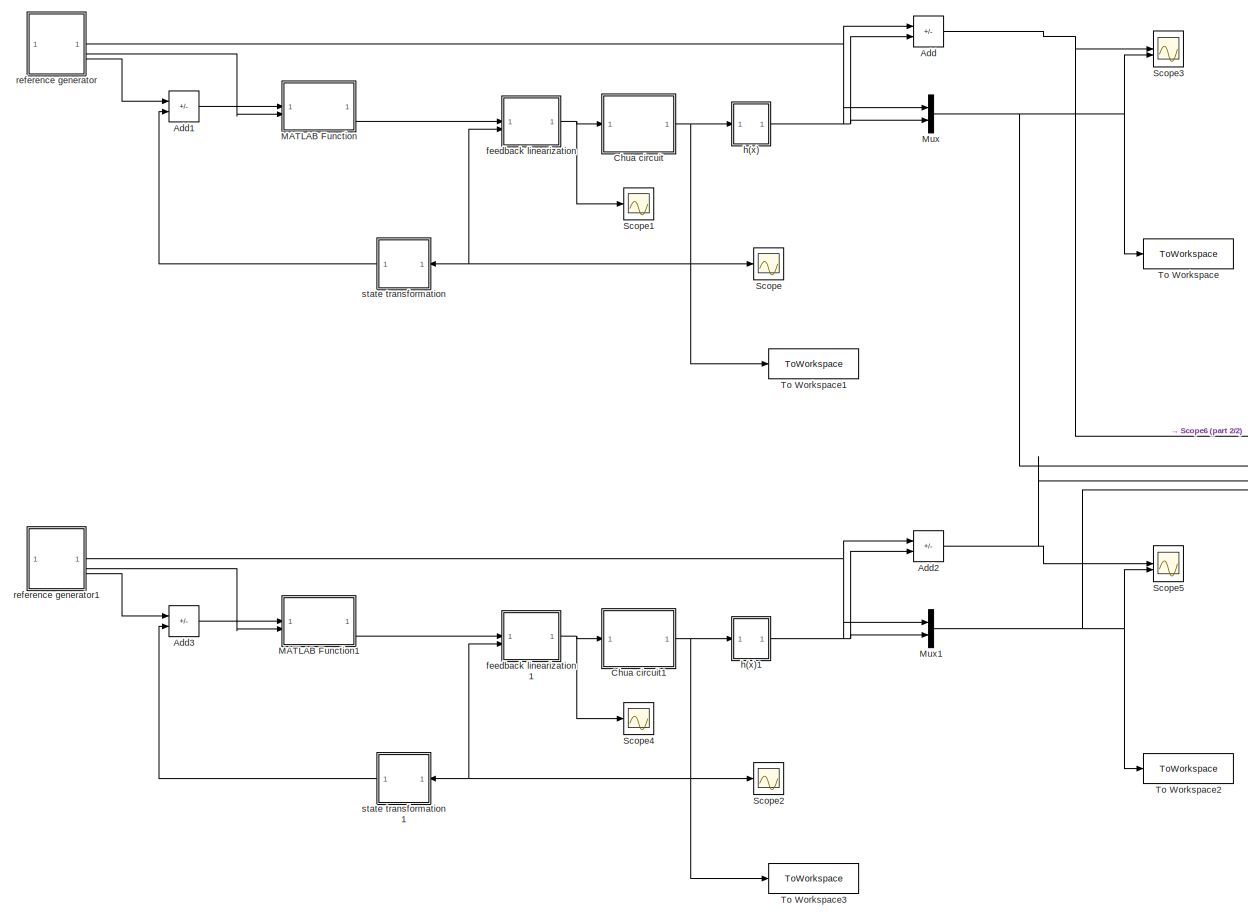
[diagram: root canvas - part 1/2, most of the canvas]
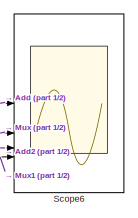
[diagram: root canvas - part 2/2, middle right region]
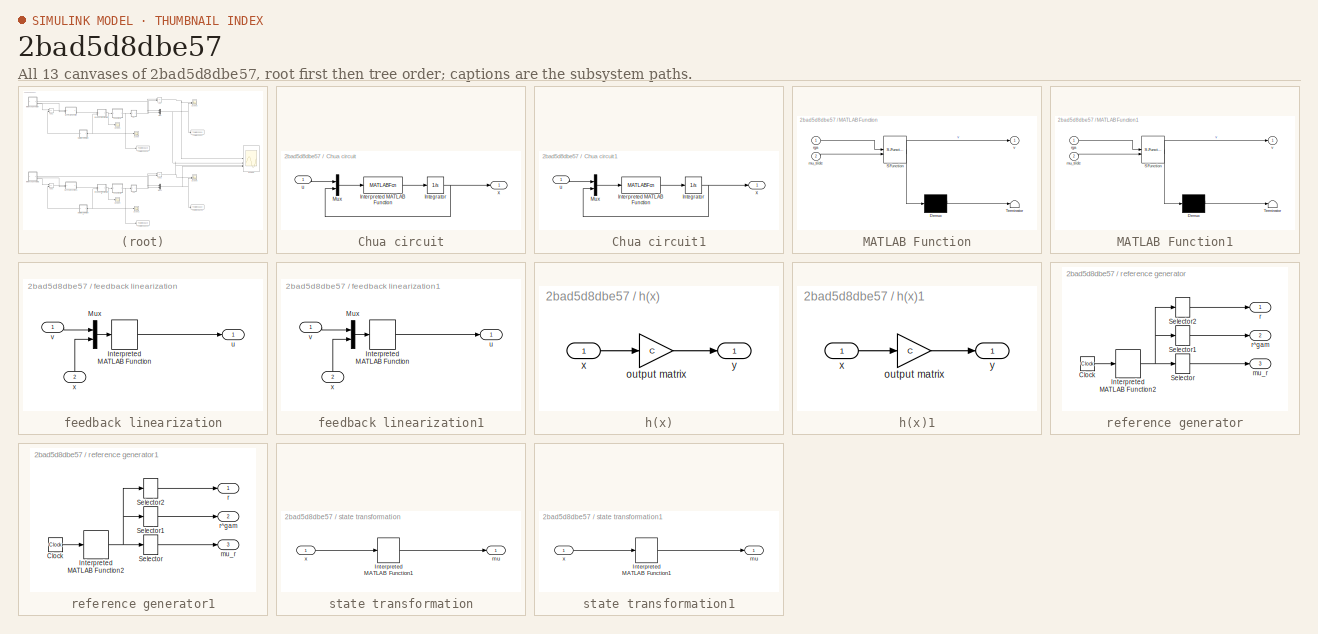
[diagram: thumbnail index - all 13 canvases of the model, root first then tree order]
MODEL slx_2bad5d8dbe57
KIND model
CONFIG AbsTol = auto
CONFIG EnableMultiTasking = off
CONFIG FixedStep = auto
CONFIG MaxStep = auto
CONFIG MinStep = auto
CONFIG RelTol = 1e-3
CONFIG SampleTimeConstraint = Unconstrained
CONFIG SolverName = VariableStepAuto
CONFIG StartTime = 0.0
CONFIG StopTime = 20
BLOCK [Sum] Add
  IconShape = rectangular
  Inputs = +-
BLOCK [Sum] Add1
  IconShape = rectangular
  Inputs = +-
BLOCK [Sum] Add2
  IconShape = rectangular
  Inputs = +-
BLOCK [Sum] Add3
  IconShape = rectangular
  Inputs = +-
BLOCK [SubSystem] Chua circuit
BLOCK [Integrator] Chua circuit/Integrator
  InitialCondition = [0; 0; 0]
BLOCK [MATLABFcn] Chua circuit/Interpreted MATLAB Function
  MATLABFcn = fg1_chua(u)
BLOCK [Mux] Chua circuit/Mux
  DisplayOption = bar
  Inputs = 2
BLOCK [Inport] Chua circuit/u
BLOCK [Outport] Chua circuit/x
  VectorParamsAs1DForOutWhenUnconnected = off
BLOCK [SubSystem] Chua circuit1
BLOCK [Integrator] Chua circuit1/Integrator
  InitialCondition = [0; 0; 0]
BLOCK [MATLABFcn] Chua circuit1/Interpreted MATLAB Function
  MATLABFcn = fg1_chua(u)
BLOCK [Mux] Chua circuit1/Mux
  DisplayOption = bar
  Inputs = 2
BLOCK [Inport] Chua circuit1/u
BLOCK [Outport] Chua circuit1/x
  VectorParamsAs1DForOutWhenUnconnected = off
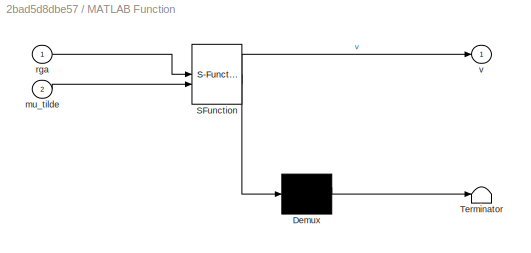
BLOCK [SubSystem] MATLAB Function
  ErrorFcn = Stateflow.Translate.translate
  LibrarySourceBlock = simulink/User-Defined\nFunctions/MATLAB Function
  PermitHierarchicalResolution = ExplicitOnly
  SFBlockType = MATLAB Function
  TreatAsAtomicUnit = on
BLOCK [Demux] MATLAB Function/ Demux 
  Outputs = 1
BLOCK [S-Function] MATLAB Function/ SFunction 
  EnableBusSupport = on
  FunctionName = sf_sfun
  PortCounts = [2 2]
  SFcnIsStateOwnerBlock = off
  SFunctionDeploymentMode = off
  Tag = Stateflow S-Function 2
BLOCK [Terminator] MATLAB Function/ Terminator 
BLOCK [Inport] MATLAB Function/mu_tilde
  Port = 2
BLOCK [Inport] MATLAB Function/rga
BLOCK [Outport] MATLAB Function/v
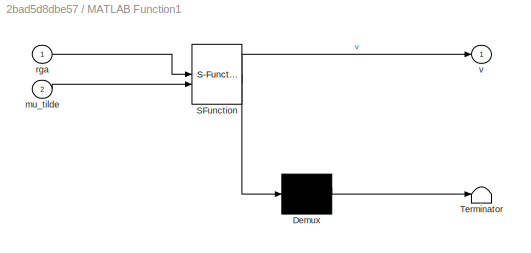
BLOCK [SubSystem] MATLAB Function1
  ErrorFcn = Stateflow.Translate.translate
  LibrarySourceBlock = simulink/User-Defined\nFunctions/MATLAB Function
  PermitHierarchicalResolution = ExplicitOnly
  SFBlockType = MATLAB Function
  TreatAsAtomicUnit = on
BLOCK [Demux] MATLAB Function1/ Demux 
  Outputs = 1
BLOCK [S-Function] MATLAB Function1/ SFunction 
  EnableBusSupport = on
  FunctionName = sf_sfun
  PortCounts = [2 2]
  SFcnIsStateOwnerBlock = off
  SFunctionDeploymentMode = off
  Tag = Stateflow S-Function 1
BLOCK [Terminator] MATLAB Function1/ Terminator 
BLOCK [Inport] MATLAB Function1/mu_tilde
  Port = 2
BLOCK [Inport] MATLAB Function1/rga
BLOCK [Outport] MATLAB Function1/v
BLOCK [Mux] Mux
  DisplayOption = bar
  Inputs = 2
BLOCK [Mux] Mux1
  DisplayOption = bar
  Inputs = 2
BLOCK [Scope] Scope
  Floating = off
  NumInputPorts = 1
  ScopeSpecificationString = Simulink.scopes.TimeScopeBlockCfg('CurrentConfiguration', extmgr.ConfigurationSet(extmgr.Configuration('Core','General UI',true),extmgr.Configuration('Core','Source UI',true),extmgr.Configuration('Sources','WiredSimulink',true,'DataLoggingVariableName','ScopeData1'),extmgr.Configuration('Visuals','Time Domain',true,'SerializedDisplays',{struct('MinYLimReal','-14.49442','MaxYLimReal','128.18925','Y...<+1491ch>
BLOCK [Scope] Scope1
  Floating = off
  NumInputPorts = 1
  ScopeSpecificationString = Simulink.scopes.TimeScopeBlockCfg('CurrentConfiguration', extmgr.ConfigurationSet(extmgr.Configuration('Core','General UI',true),extmgr.Configuration('Core','Source UI',true),extmgr.Configuration('Sources','WiredSimulink',true,'DataLoggingVariableName','ScopeData2'),extmgr.Configuration('Visuals','Time Domain',true,'SerializedDisplays',{struct('MinYLimReal','-129.44391','MaxYLimReal','14.59633','Y...<+1466ch>
BLOCK [Scope] Scope2
  Floating = off
  NumInputPorts = 1
  ScopeSpecificationString = Simulink.scopes.TimeScopeBlockCfg('CurrentConfiguration', extmgr.ConfigurationSet(extmgr.Configuration('Core','General UI',true),extmgr.Configuration('Core','Source UI',true),extmgr.Configuration('Sources','WiredSimulink',true,'DataLoggingVariableName','ScopeData1'),extmgr.Configuration('Visuals','Time Domain',true,'SerializedDisplays',{struct('MinYLimReal','-14.49442','MaxYLimReal','128.18925','Y...<+1491ch>
BLOCK [Scope] Scope3
  Floating = off
  NumInputPorts = 2
  ScopeSpecificationString = Simulink.scopes.TimeScopeBlockCfg('CurrentConfiguration', extmgr.ConfigurationSet(extmgr.Configuration('Core','General UI',true),extmgr.Configuration('Core','Source UI',true),extmgr.Configuration('Sources','WiredSimulink',true),extmgr.Configuration('Visuals','Time Domain',true,'SerializedDisplays',{struct('MinYLimReal','-0.29273','MaxYLimReal','3.36586','YLabelReal','','MinYLimMag','0.00000','MaxY...<+2143ch>
BLOCK [Scope] Scope4
  Floating = off
  NumInputPorts = 1
  ScopeSpecificationString = Simulink.scopes.TimeScopeBlockCfg('CurrentConfiguration', extmgr.ConfigurationSet(extmgr.Configuration('Core','General UI',true),extmgr.Configuration('Core','Source UI',true),extmgr.Configuration('Sources','WiredSimulink',true,'DataLoggingVariableName','ScopeData2'),extmgr.Configuration('Visuals','Time Domain',true,'SerializedDisplays',{struct('MinYLimReal','-129.44391','MaxYLimReal','14.59633','Y...<+1466ch>
BLOCK [Scope] Scope5
  Floating = off
  NumInputPorts = 2
  ScopeSpecificationString = Simulink.scopes.TimeScopeBlockCfg('CurrentConfiguration', extmgr.ConfigurationSet(extmgr.Configuration('Core','General UI',true),extmgr.Configuration('Core','Source UI',true),extmgr.Configuration('Sources','WiredSimulink',true,'DataLoggingVariableName','ScopeData3'),extmgr.Configuration('Visuals','Time Domain',true,'SerializedDisplays',{struct('MinYLimReal','-0.29273','MaxYLimReal','3.36586','YLab...<+2161ch>
BLOCK [Scope] Scope6
  Floating = off
  NumInputPorts = 4
  ScopeSpecificationString = Simulink.scopes.TimeScopeBlockCfg('CurrentConfiguration', extmgr.ConfigurationSet(extmgr.Configuration('Core','General UI',true),extmgr.Configuration('Core','Source UI',true),extmgr.Configuration('Sources','WiredSimulink',true,'DataLoggingVariableName','ScopeData4'),extmgr.Configuration('Visuals','Time Domain',true,'SerializedDisplays',{struct('MinYLimReal','-0.29272','MaxYLimReal','3.36586','YLab...<+3550ch>
BLOCK [ToWorkspace] To Workspace
  FixptAsFi = on
  MaxDataPoints = inf
  SampleTime = -1
  SaveFormat = Timeseries
  VariableName = resulting
BLOCK [ToWorkspace] To Workspace1
  FixptAsFi = on
  MaxDataPoints = inf
  SampleTime = -1
  SaveFormat = Timeseries
  VariableName = stateres
BLOCK [ToWorkspace] To Workspace2
  FixptAsFi = on
  MaxDataPoints = inf
  SampleTime = -1
  SaveFormat = Timeseries
  VariableName = resulting1
BLOCK [ToWorkspace] To Workspace3
  FixptAsFi = on
  MaxDataPoints = inf
  SampleTime = -1
  SaveFormat = Timeseries
  VariableName = stateres1
BLOCK [SubSystem] feedback linearization
BLOCK [MATLABFcn] feedback linearization/Interpreted MATLAB Function
  MATLABFcn = u_chua(u)
  OutputSignalType = real
BLOCK [Mux] feedback linearization/Mux
  DisplayOption = bar
  Inputs = 2
BLOCK [Outport] feedback linearization/u
  VectorParamsAs1DForOutWhenUnconnected = off
BLOCK [Inport] feedback linearization/v
BLOCK [Inport] feedback linearization/x
  NameLocation = right
  Port = 2
BLOCK [SubSystem] feedback linearization1
BLOCK [MATLABFcn] feedback linearization1/Interpreted MATLAB Function
  MATLABFcn = u_chua(u)
  OutputSignalType = real
BLOCK [Mux] feedback linearization1/Mux
  DisplayOption = bar
  Inputs = 2
BLOCK [Outport] feedback linearization1/u
  VectorParamsAs1DForOutWhenUnconnected = off
BLOCK [Inport] feedback linearization1/v
BLOCK [Inport] feedback linearization1/x
  NameLocation = right
  Port = 2
BLOCK [SubSystem] h(x)
BLOCK [Gain] h(x)/output matrix
  Gain = C
  Multiplication = Matrix(K*u)
BLOCK [Inport] h(x)/x
BLOCK [Outport] h(x)/y
  VectorParamsAs1DForOutWhenUnconnected = off
BLOCK [SubSystem] h(x)1
BLOCK [Gain] h(x)1/output matrix
  Gain = C
  Multiplication = Matrix(K*u)
BLOCK [Inport] h(x)1/x
BLOCK [Outport] h(x)1/y
  VectorParamsAs1DForOutWhenUnconnected = off
BLOCK [SubSystem] reference generator
BLOCK [Clock] reference generator/Clock
BLOCK [MATLABFcn] reference generator/Interpreted MATLAB Function2
  MATLABFcn = ref_chua(u)
BLOCK [Selector] reference generator/Selector
  IndexOptions = Index vector (dialog)
  Indices = 1:ga
  InputPortWidth = ga+1
  OutputSizes = 1
BLOCK [Selector] reference generator/Selector1
  IndexOptions = Index vector (dialog)
  Indices = ga+1
  InputPortWidth = ga+1
  OutputSizes = 1
BLOCK [Selector] reference generator/Selector2
  IndexOptions = Index vector (dialog)
  Indices = 1
  InputPortWidth = ga+1
  OutputSizes = 1
BLOCK [Outport] reference generator/mu_r
  Port = 3
  VectorParamsAs1DForOutWhenUnconnected = off
BLOCK [Outport] reference generator/r
  VectorParamsAs1DForOutWhenUnconnected = off
BLOCK [Outport] reference generator/r^gam
  Port = 2
  VectorParamsAs1DForOutWhenUnconnected = off
BLOCK [SubSystem] reference generator1
BLOCK [Clock] reference generator1/Clock
BLOCK [MATLABFcn] reference generator1/Interpreted MATLAB Function2
  MATLABFcn = ref_chua(u)
BLOCK [Selector] reference generator1/Selector
  IndexOptions = Index vector (dialog)
  Indices = 1:ga
  InputPortWidth = ga+1
  OutputSizes = 1
BLOCK [Selector] reference generator1/Selector1
  IndexOptions = Index vector (dialog)
  Indices = ga+1
  InputPortWidth = ga+1
  OutputSizes = 1
BLOCK [Selector] reference generator1/Selector2
  IndexOptions = Index vector (dialog)
  Indices = 1
  InputPortWidth = ga+1
  OutputSizes = 1
BLOCK [Outport] reference generator1/mu_r
  Port = 3
  VectorParamsAs1DForOutWhenUnconnected = off
BLOCK [Outport] reference generator1/r
  VectorParamsAs1DForOutWhenUnconnected = off
BLOCK [Outport] reference generator1/r^gam
  Port = 2
  VectorParamsAs1DForOutWhenUnconnected = off
BLOCK [SubSystem] state transformation
BLOCK [MATLABFcn] state transformation/Interpreted MATLAB Function1
  MATLABFcn = mu_chua(u)
BLOCK [Outport] state transformation/mu
  VectorParamsAs1DForOutWhenUnconnected = off
BLOCK [Inport] state transformation/x
  NameLocation = top
BLOCK [SubSystem] state transformation1
BLOCK [MATLABFcn] state transformation1/Interpreted MATLAB Function1
  MATLABFcn = mu_chua(u)
BLOCK [Outport] state transformation1/mu
  VectorParamsAs1DForOutWhenUnconnected = off
BLOCK [Inport] state transformation1/x
  NameLocation = top
LINE Add1:1 -> MATLAB Function:2
NET Add2:1 -> Scope5:1, Scope6:3
LINE Add3:1 -> MATLAB Function1:2
NET Add:1 -> Scope3:1, Scope6:1
NET Chua circuit/Integrator:1 -> Chua circuit/Mux:2, Chua circuit/x:1
LINE Chua circuit/Interpreted MATLAB Function:1 -> Chua circuit/Integrator:1
LINE Chua circuit/Mux:1 -> Chua circuit/Interpreted MATLAB Function:1
LINE Chua circuit/u:1 -> Chua circuit/Mux:1
NET Chua circuit1/Integrator:1 -> Chua circuit1/Mux:2, Chua circuit1/x:1
LINE Chua circuit1/Interpreted MATLAB Function:1 -> Chua circuit1/Integrator:1
LINE Chua circuit1/Mux:1 -> Chua circuit1/Interpreted MATLAB Function:1
LINE Chua circuit1/u:1 -> Chua circuit1/Mux:1
NET Chua circuit1:1 -> Scope2:1, To Workspace3:1, feedback linearization1:2, h(x)1:1, state transformation1:1
NET Chua circuit:1 -> Scope:1, To Workspace1:1, feedback linearization:2, h(x):1, state transformation:1
LINE MATLAB Function1:1 -> feedback linearization1:1
LINE MATLAB Function:1 -> feedback linearization:1
NET Mux1:1 -> Scope5:2, Scope6:4, To Workspace2:1
NET Mux:1 -> Scope3:2, Scope6:2, To Workspace:1
LINE feedback linearization/Interpreted MATLAB Function:1 -> feedback linearization/u:1
LINE feedback linearization/Mux:1 -> feedback linearization/Interpreted MATLAB Function:1
LINE feedback linearization/v:1 -> feedback linearization/Mux:1
LINE feedback linearization/x:1 -> feedback linearization/Mux:2
LINE feedback linearization1/Interpreted MATLAB Function:1 -> feedback linearization1/u:1
LINE feedback linearization1/Mux:1 -> feedback linearization1/Interpreted MATLAB Function:1
LINE feedback linearization1/v:1 -> feedback linearization1/Mux:1
LINE feedback linearization1/x:1 -> feedback linearization1/Mux:2
NET feedback linearization1:1 -> Chua circuit1:1, Scope4:1
NET feedback linearization:1 -> Chua circuit:1, Scope1:1
LINE h(x)/output matrix:1 -> h(x)/y:1
LINE h(x)/x:1 -> h(x)/output matrix:1
LINE h(x)1/output matrix:1 -> h(x)1/y:1
LINE h(x)1/x:1 -> h(x)1/output matrix:1
NET h(x)1:1 -> Add2:2, Mux1:2
NET h(x):1 -> Add:2, Mux:2
LINE reference generator/Clock:1 -> reference generator/Interpreted MATLAB Function2:1
NET reference generator/Interpreted MATLAB Function2:1 -> reference generator/Selector1:1, reference generator/Selector2:1, reference generator/Selector:1
LINE reference generator/Selector1:1 -> reference generator/r^gam:1
LINE reference generator/Selector2:1 -> reference generator/r:1
LINE reference generator/Selector:1 -> reference generator/mu_r:1
LINE reference generator1/Clock:1 -> reference generator1/Interpreted MATLAB Function2:1
NET reference generator1/Interpreted MATLAB Function2:1 -> reference generator1/Selector1:1, reference generator1/Selector2:1, reference generator1/Selector:1
LINE reference generator1/Selector1:1 -> reference generator1/r^gam:1
LINE reference generator1/Selector2:1 -> reference generator1/r:1
LINE reference generator1/Selector:1 -> reference generator1/mu_r:1
NET reference generator1:1 -> Add2:1, Mux1:1
LINE reference generator1:2 -> MATLAB Function1:1
LINE reference generator1:3 -> Add3:1
NET reference generator:1 -> Add:1, Mux:1
LINE reference generator:2 -> MATLAB Function:1
LINE reference generator:3 -> Add1:1
LINE state transformation/Interpreted MATLAB Function1:1 -> state transformation/mu:1
LINE state transformation/x:1 -> state transformation/Interpreted MATLAB Function1:1
LINE state transformation1/Interpreted MATLAB Function1:1 -> state transformation1/mu:1
LINE state transformation1/x:1 -> state transformation1/Interpreted MATLAB Function1:1
LINE state transformation1:1 -> Add3:2
LINE state transformation:1 -> Add1:2
note: NET lines group one-source signal fan-out (src -> all destinations, sorted); 1:1 wires keep LINE
CHART MATLAB Function states=1 transitions=1
  STATE_LABEL 'eML_blk_kernel()'
  STATE_LABEL 'SCRIPT:\nfunction v = fcn(rga, mu_tilde)\n\nk2 = 30;\nk1 =80;\neta = 5;\ns = mu_tilde(2) + k2 * mu_tilde(1);\n\nv = rga+ k2*mu_tilde(2)+k1*sign(eta*s);\nend'
CHART MATLAB Function1 states=1 transitions=1
  STATE_LABEL 'eML_blk_kernel()'
  STATE_LABEL 'SCRIPT:\nfunction v = fcn(rga, mu_tilde)\n\nk2 = 25;\nk1 = 150;\n\nv = rga+ k2*mu_tilde(2)+k1*mu_tilde(1);\nend'
CHART  states=0 transitions=0
CHART  states=0 transitions=0
